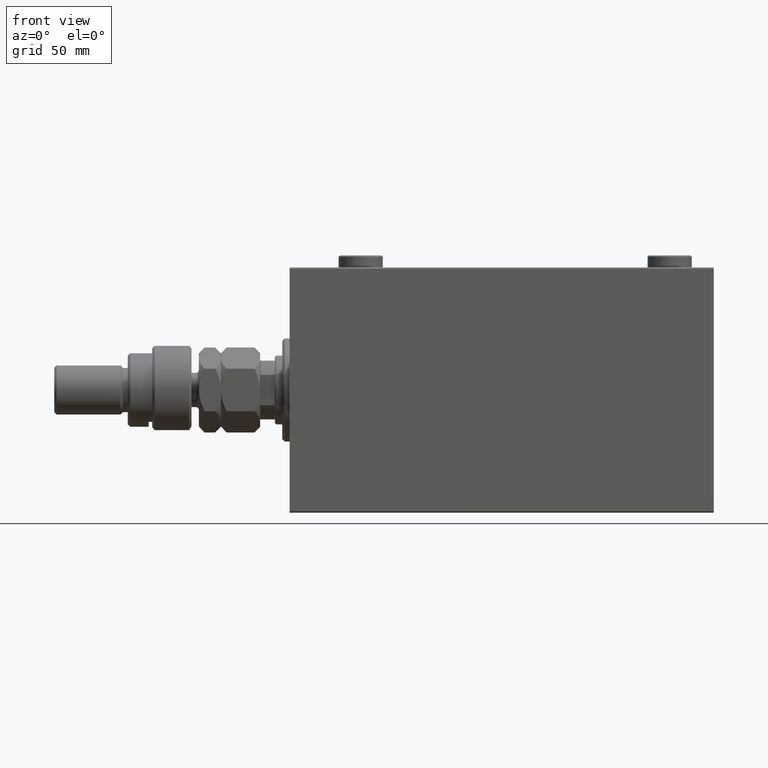
[diagram: clean part render]
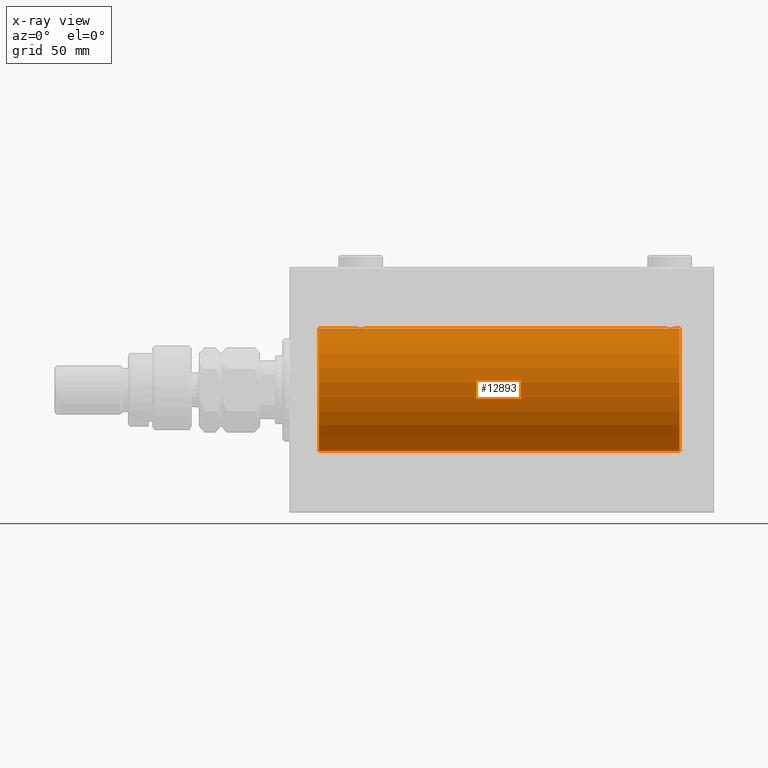
[diagram: x-ray — body ghosted, one internal face saturated and labeled with its STEP entity id]
A machine part, front view, then the same camera in x-ray: the body is ghosted and one INTERNAL B-rep face — a face not visible from any outside direction — is saturated and labeled: STEP entity #12893.
In plain terms, the highlighted cylindrical surface (partial cylindrical patch) has radius 25 mm, axis along (-1, -0, -0).
Its self-contained STEP definition (entity closure, byte-faithful):
#47 = CARTESIAN_POINT ( 'NONE',  ( 153.8896320349114433, -2.245863995402903157, 24.89899750494197761 ) ) ;
#211 = CARTESIAN_POINT ( 'NONE',  ( 153.4774322565980924, -1.989585286700263689, -24.92087098724766037 ) ) ;
#462 = CARTESIAN_POINT ( 'NONE',  ( 152.5665064476025918, -0.6588655613945982870, -24.99312727339971119 ) ) ;
#815 = CARTESIAN_POINT ( 'NONE',  ( 31.24606379094067066, -1.109818057797415713, 24.97580694515542632 ) ) ;
#830 = AXIS2_PLACEMENT_3D ( 'NONE', #2055, #24644, #47203 ) ;
#1209 = EDGE_CURVE ( 'NONE', #16530, #36736, #40498, .T. ) ;
#1306 = CARTESIAN_POINT ( 'NONE',  ( 28.67403429960540251, -2.484007091859760763, -24.87630842367763151 ) ) ;
#1545 = CARTESIAN_POINT ( 'NONE',  ( 26.83172358506043764, -1.255214705003182774, -24.96884293994578385 ) ) ;
#1779 = CARTESIAN_POINT ( 'NONE',  ( 30.98538033717095175, -1.528152964861311913, 24.95362559291379156 ) ) ;
#2017 = CARTESIAN_POINT ( 'NONE',  ( 26.50000000000000000, -0.3305063766663776104, -25.00000000000000000 ) ) ;
#2045 = ORIENTED_EDGE ( 'NONE', *, *, #31508, .T. ) ;
#2055 = CARTESIAN_POINT ( 'NONE',  ( 159.0000000000000000, 0.000000000000000000, 0.000000000000000000 ) ) ;
#2305 = CIRCLE ( 'NONE', #31345, 25.00000000000000000 ) ;
#2786 = EDGE_CURVE ( 'NONE', #36736, #15660, #19069, .T. ) ;
#3046 = VECTOR ( 'NONE', #18551, 1000.000000000000000 ) ;
#3183 = VERTEX_POINT ( 'NONE', #36355 ) ;
#3407 = CARTESIAN_POINT ( 'NONE',  ( 155.8078834240581045, -2.371528299825748309, -24.88734287464370709 ) ) ;
#3647 = CARTESIAN_POINT ( 'NONE',  ( 152.5000000000000284, -1.859904925762520849E-14, -25.00000000000000000 ) ) ;
#3736 = CARTESIAN_POINT ( 'NONE',  ( 153.4746381775692043, -1.987446652080261167, 24.92104239223419881 ) ) ;
#3758 = CARTESIAN_POINT ( 'NONE',  ( 26.50000000000000355, -1.940558383798427991E-23, 25.00000000000000000 ) ) ;
#3987 = CARTESIAN_POINT ( 'NONE',  ( 152.6278403059139919, -0.8058335233485478533, 24.98746277938383287 ) ) ;
#4501 = CARTESIAN_POINT ( 'NONE',  ( 30.10723845838410639, -2.247417070759899715, 24.89885693081946272 ) ) ;
#4722 = CARTESIAN_POINT ( 'NONE',  ( 157.2460637909407239, -1.109818057797416602, 24.97580694515542987 ) ) ;
#4744 = CARTESIAN_POINT ( 'NONE',  ( 30.25084023924055643, -2.170728182476724388, 24.90574631553725027 ) ) ;
#4963 = CARTESIAN_POINT ( 'NONE',  ( 156.8818595414864205, -1.653834020452921383, 24.94550385189584318 ) ) ;
#5213 = DIRECTION ( 'NONE',  ( 0.000000000000000000, 0.000000000000000000, 1.000000000000000000 ) ) ;
#5223 = CARTESIAN_POINT ( 'NONE',  ( 31.50000000000000000, 4.363522812204021992E-16, 25.00000000000000000 ) ) ;
#5231 = CARTESIAN_POINT ( 'NONE',  ( 29.80788342405805480, -2.371528299825742092, -24.88734287464371420 ) ) ;
#5274 = LINE ( 'NONE', #19308, #27976 ) ;
#5704 = CARTESIAN_POINT ( 'NONE',  ( 31.50000000000000000, 3.061616978460191625E-15, -25.00000000000000000 ) ) ;
#5848 = B_SPLINE_CURVE_WITH_KNOTS ( 'NONE', 3,
 ( #28685, #44152, #25494, #9793, #40453, #18160, #33091, #6837, #44388, #14460, #10749, #25738, #7083, #3407, #7813, #23054, #38012, #15194, #26971, #30155, #15435, #45130, #44881, #211, #29657, #11489, #45368, #26231, #19384, #462, #26721, #3647 ),
 .UNSPECIFIED., .F., .F.,
 ( 4, 2, 2, 2, 2, 2, 2, 2, 2, 2, 2, 2, 2, 2, 2, 4 ),
 ( 0.007821024441662285942, 0.008309723826317895815, 0.008798423210973505687, 0.009287122595629113825, 0.009775821980284723697, 0.01026452136494033357, 0.01075322074959594344, 0.01124192013425155331, 0.01173061951890716145, 0.01221931890356277133, 0.01270801828821838120, 0.01319671767287399107, 0.01368541705752960094, 0.01417411644218520908, 0.01466281582684082069, 0.01564021459615200574 ),
 .UNSPECIFIED. ) ;
#6220 = EDGE_CURVE ( 'NONE', #9595, #47251, #10904, .T. ) ;
#6837 = CARTESIAN_POINT ( 'NONE',  ( 156.9874981583440103, -1.525407911884363088, -24.95379469572362297 ) ) ;
#7083 = CARTESIAN_POINT ( 'NONE',  ( 156.1103679650886988, -2.245863995402897384, -24.89899750494196340 ) ) ;
#7418 = CARTESIAN_POINT ( 'NONE',  ( 153.3461666385066167, -1.881857718844722305, 24.92933960374833546 ) ) ;
#7655 = CARTESIAN_POINT ( 'NONE',  ( 155.8043566091629941, -2.372734907014176553, 24.88722742718433167 ) ) ;
#7813 = CARTESIAN_POINT ( 'NONE',  ( 155.6490439016910727, -2.419770561643909801, -24.88263927071751525 ) ) ;
#7903 = CARTESIAN_POINT ( 'NONE',  ( 152.5000000000000568, -0.1631750940176196485, 25.00000000000000711 ) ) ;
#8242 = ORIENTED_EDGE ( 'NONE', *, *, #38873, .F. ) ;
#8402 = CARTESIAN_POINT ( 'NONE',  ( 12.00000000000001066, 0.000000000000000000, 0.000000000000000000 ) ) ;
#8413 = CARTESIAN_POINT ( 'NONE',  ( 28.35439333851368815, -2.420689345803757497, -24.88254961038873248 ) ) ;
#8499 = DIRECTION ( 'NONE',  ( -1.000000000000000000, -0.000000000000000000, -0.000000000000000000 ) ) ;
#8631 = CARTESIAN_POINT ( 'NONE',  ( 157.4334935523974934, -0.6588655613945852974, 24.99312727339970763 ) ) ;
#8654 = CARTESIAN_POINT ( 'NONE',  ( 30.52256774340190049, -1.989585286700249256, 24.92087098724766392 ) ) ;
#9371 = CARTESIAN_POINT ( 'NONE',  ( 26.56650644760251723, -0.6588655613945887390, -24.99312727339970408 ) ) ;
#9595 = VERTEX_POINT ( 'NONE', #38760 ) ;
#9793 = CARTESIAN_POINT ( 'NONE',  ( 157.4201490922093569, -0.6480119923854199548, -24.99212088949390775 ) ) ;
#10749 = CARTESIAN_POINT ( 'NONE',  ( 156.5253618224308809, -1.987446652080268716, -24.92104239223420947 ) ) ;
#10904 = LINE ( 'NONE', #44536, #3046 ) ;
#10922 = EDGE_CURVE ( 'NONE', #26493, #47251, #2305, .T. ) ;
#11088 = CARTESIAN_POINT ( 'NONE',  ( 152.5798509077907283, -0.6480119923854225084, 24.99212088949390775 ) ) ;
#11342 = CARTESIAN_POINT ( 'NONE',  ( 154.6705231988572962, -2.483544361357272745, 24.87635491893501083 ) ) ;
#11361 = CARTESIAN_POINT ( 'NONE',  ( 26.75239748980448695, -1.106703319666887397, 24.97594585958023572 ) ) ;
#11489 = CARTESIAN_POINT ( 'NONE',  ( 153.1181404585135795, -1.653834020452954245, -24.94550385189584318 ) ) ;
#11600 = CARTESIAN_POINT ( 'NONE',  ( 28.67052319885731393, -2.483544361357276742, 24.87635491893502504 ) ) ;
#11811 = ORIENTED_EDGE ( 'NONE', *, *, #26593, .T. ) ;
#11911 = VERTEX_POINT ( 'NONE', #21139 ) ;
#12893 = ADVANCED_FACE ( 'NONE', ( #17285 ), #21444, .F. ) ;
#13065 = CARTESIAN_POINT ( 'NONE',  ( 28.19564339083698457, -2.372734907014170780, -24.88722742718433878 ) ) ;
#14460 = CARTESIAN_POINT ( 'NONE',  ( 156.6538333614933833, -1.881857718844727190, -24.92933960374833191 ) ) ;
#14545 = CARTESIAN_POINT ( 'NONE',  ( 155.6456066614863119, -2.420689345803765935, 24.88254961038872892 ) ) ;
#14566 = CARTESIAN_POINT ( 'NONE',  ( 29.64560666148632961, -2.420689345803763715, 24.88254961038873248 ) ) ;
#14783 = CARTESIAN_POINT ( 'NONE',  ( 152.5000000000000284, -1.941505016884693205E-23, 25.00000000000000000 ) ) ;
#14967 = ORIENTED_EDGE ( 'NONE', *, *, #10922, .T. ) ;
#15053 = CARTESIAN_POINT ( 'NONE',  ( 26.57985090779071058, -0.6480119923854237296, 24.99212088949391131 ) ) ;
#15194 = CARTESIAN_POINT ( 'NONE',  ( 154.8367641036145415, -2.500125740978203392, -24.87467329022544860 ) ) ;
#15283 = CARTESIAN_POINT ( 'NONE',  ( 155.3259657003945904, -2.484007091859768313, 24.87630842367763151 ) ) ;
#15297 = DIRECTION ( 'NONE',  ( -1.000000000000000000, 0.000000000000000000, 0.000000000000000000 ) ) ;
#15305 = CARTESIAN_POINT ( 'NONE',  ( 27.01250184165602164, -1.525407911884369083, 24.95379469572362652 ) ) ;
#15435 = CARTESIAN_POINT ( 'NONE',  ( 154.1956433908370627, -2.372734907014182326, -24.88722742718433523 ) ) ;
#15520 = VECTOR ( 'NONE', #30572, 1000.000000000000000 ) ;
#15635 = CARTESIAN_POINT ( 'NONE',  ( 26.50000000000000355, -3.314091892289268660E-15, -25.00000000000000000 ) ) ;
#15660 = VERTEX_POINT ( 'NONE', #37469 ) ;
#15863 = VERTEX_POINT ( 'NONE', #18060 ) ;
#16042 = CARTESIAN_POINT ( 'NONE',  ( 31.43349355239748988, -0.6588655613945851863, 24.99312727339971119 ) ) ;
#16049 = CARTESIAN_POINT ( 'NONE',  ( 29.64904390169096615, -2.419770561643904472, -24.88263927071750814 ) ) ;
#16526 = CARTESIAN_POINT ( 'NONE',  ( 26.50000000000000355, -3.314091892289268660E-15, -25.00000000000000000 ) ) ;
#16530 = VERTEX_POINT ( 'NONE', #39940 ) ;
#16766 = CARTESIAN_POINT ( 'NONE',  ( 27.47743225659811017, -1.989585286700241928, -24.92087098724764971 ) ) ;
#17285 = FACE_OUTER_BOUND ( 'NONE', #24513, .T. ) ;
#18060 = CARTESIAN_POINT ( 'NONE',  ( 157.5000000000000284, 3.061616978453880738E-15, -25.00000000000000000 ) ) ;
#18160 = CARTESIAN_POINT ( 'NONE',  ( 157.2476025101955202, -1.106703319666883401, -24.97594585958023927 ) ) ;
#18244 = CARTESIAN_POINT ( 'NONE',  ( 152.8298870971907775, -1.252049606094332246, 24.96900299967627390 ) ) ;
#18551 = DIRECTION ( 'NONE',  ( -1.000000000000000000, -0.000000000000000000, -0.000000000000000000 ) ) ;
#18730 = CARTESIAN_POINT ( 'NONE',  ( 153.7461680457550415, -2.169003991399871545, 24.90589728951138682 ) ) ;
#18755 = CARTESIAN_POINT ( 'NONE',  ( 26.50000000000001066, -0.1631750940176213693, 25.00000000000000355 ) ) ;
#18940 = EDGE_CURVE ( 'NONE', #16530, #15863, #34997, .T. ) ;
#19000 = CARTESIAN_POINT ( 'NONE',  ( 27.88963203491136156, -2.245863995402907154, 24.89899750494197050 ) ) ;
#19051 = B_SPLINE_CURVE_WITH_KNOTS ( 'NONE', 3,
 ( #3758, #18755, #33687, #15053, #30014, #11361, #21932, #15305, #33201, #26332, #22664, #37624, #19000, #30260, #45232, #11600, #26577, #41553, #48184, #14566, #29525, #4501, #4744, #8654, #42279, #20207, #1779, #38116, #815, #16042, #38842, #5223 ),
 .UNSPECIFIED., .F., .F.,
 ( 4, 2, 2, 2, 2, 2, 2, 2, 2, 2, 2, 2, 2, 2, 2, 4 ),
 ( 0.007821024441662279003, 0.008309723826317887141, 0.008798423210973493544, 0.009287122595629099947, 0.009775821980284708085, 0.01026452136494031622, 0.01075322074959592263, 0.01124192013425153076, 0.01173061951890713717, 0.01221931890356274530, 0.01270801828821835171, 0.01319671767287395811, 0.01368541705752956625, 0.01417411644218517265, 0.01466281582684077905, 0.01564021459615199186 ),
 .UNSPECIFIED. ) ;
#19069 = LINE ( 'NONE', #33760, #15520 ) ;
#19308 = CARTESIAN_POINT ( 'NONE',  ( 159.0000000000000000, 3.061616997868382254E-15, -25.00000000000000000 ) ) ;
#19384 = CARTESIAN_POINT ( 'NONE',  ( 152.7539362090593613, -1.109818057797427482, -24.97580694515542987 ) ) ;
#19744 = CARTESIAN_POINT ( 'NONE',  ( 31.48417840057656036, -0.3254210271412189548, -24.99840249400844883 ) ) ;
#19956 = CARTESIAN_POINT ( 'NONE',  ( 157.1682764149396405, -1.255214705003171449, 24.96884293994578741 ) ) ;
#19985 = CARTESIAN_POINT ( 'NONE',  ( 30.98749815834397836, -1.525407911884361978, -24.95379469572361586 ) ) ;
#20188 = CARTESIAN_POINT ( 'NONE',  ( 157.5000000000000284, 1.255219391854918090E-15, 25.00000000000000000 ) ) ;
#20207 = CARTESIAN_POINT ( 'NONE',  ( 30.88185954148646317, -1.653834020452941589, 24.94550385189584318 ) ) ;
#20215 = CARTESIAN_POINT ( 'NONE',  ( 27.11814045851354393, -1.653834020452935594, -24.94550385189585029 ) ) ;
#20321 = LINE ( 'NONE', #35028, #35074 ) ;
#20463 = CARTESIAN_POINT ( 'NONE',  ( 30.88412382786470900, -1.651251241585097285, -24.94567559498349141 ) ) ;
#20536 = CARTESIAN_POINT ( 'NONE',  ( 159.0000000000000000, 3.061616997868382254E-15, -25.00000000000000000 ) ) ;
#20702 = CARTESIAN_POINT ( 'NONE',  ( 29.16706495178061331, -2.499872792855077908, -24.87469871246083031 ) ) ;
#21139 = CARTESIAN_POINT ( 'NONE',  ( 31.50000000000000000, 4.363522812204021992E-16, 25.00000000000000000 ) ) ;
#21444 = CYLINDRICAL_SURFACE ( 'NONE', #830, 25.00000000000000000 ) ;
#21852 = ORIENTED_EDGE ( 'NONE', *, *, #27524, .T. ) ;
#21932 = CARTESIAN_POINT ( 'NONE',  ( 26.82988709719075970, -1.252049606094340239, 24.96900299967627390 ) ) ;
#22646 = CARTESIAN_POINT ( 'NONE',  ( 156.1072384583841313, -2.247417070759898383, 24.89885693081946982 ) ) ;
#22664 = CARTESIAN_POINT ( 'NONE',  ( 27.47463817756919013, -1.987446652080266496, 24.92104239223420592 ) ) ;
#23054 = CARTESIAN_POINT ( 'NONE',  ( 155.3294768011427323, -2.483544361357274077, -24.87635491893501083 ) ) ;
#23653 = CARTESIAN_POINT ( 'NONE',  ( 30.65383336149338334, -1.881857718844711869, -24.92933960374833902 ) ) ;
#24096 = ORIENTED_EDGE ( 'NONE', *, *, #1209, .F. ) ;
#24513 = EDGE_LOOP ( 'NONE', ( #24096, #25266, #2045, #32459, #21852, #31041, #14967, #39215, #11811, #8242, #42955, #32231 ) ) ;
#24644 = DIRECTION ( 'NONE',  ( -1.000000000000000000, -0.000000000000000000, -0.000000000000000000 ) ) ;
#24937 = EDGE_CURVE ( 'NONE', #27535, #48107, #5274, .T. ) ;
#25176 = EDGE_CURVE ( 'NONE', #28691, #26493, #20321, .T. ) ;
#25266 = ORIENTED_EDGE ( 'NONE', *, *, #18940, .T. ) ;
#25372 = B_SPLINE_CURVE_WITH_KNOTS ( 'NONE', 3,
 ( #14783, #7903, #44719, #11088, #3987, #44468, #18244, #33178, #41041, #7418, #3736, #18730, #47, #29991, #48161, #11342, #26313, #41280, #15283, #14545, #7655, #22646, #37598, #29502, #45703, #4963, #38096, #19956, #4722, #8631, #42258, #20188 ),
 .UNSPECIFIED., .F., .F.,
 ( 4, 2, 2, 2, 2, 2, 2, 2, 2, 2, 2, 2, 2, 2, 2, 4 ),
 ( 0.007821024441662285942, 0.008309723826317895815, 0.008798423210973505687, 0.009287122595629115560, 0.009775821980284725432, 0.01026452136494033357, 0.01075322074959594344, 0.01124192013425155331, 0.01173061951890716319, 0.01221931890356277306, 0.01270801828821838120, 0.01319671767287399280, 0.01368541705752960094, 0.01417411644218521255, 0.01466281582684082069, 0.01564021459615200921 ),
 .UNSPECIFIED. ) ;
#25494 = CARTESIAN_POINT ( 'NONE',  ( 157.4841784005765817, -0.3254210271412191213, -24.99840249400845238 ) ) ;
#25552 = CARTESIAN_POINT ( 'NONE',  ( 152.5000000000000284, -1.859904925762520849E-14, -25.00000000000000000 ) ) ;
#25738 = CARTESIAN_POINT ( 'NONE',  ( 156.2538319542450438, -2.169003991399876874, -24.90589728951139037 ) ) ;
#26231 = CARTESIAN_POINT ( 'NONE',  ( 152.8317235850605016, -1.255214705003197873, -24.96884293994578741 ) ) ;
#26313 = CARTESIAN_POINT ( 'NONE',  ( 154.8329350482193831, -2.499872792855083237, 24.87469871246082675 ) ) ;
#26332 = CARTESIAN_POINT ( 'NONE',  ( 27.34616663850662377, -1.881857718844722527, 24.92933960374834967 ) ) ;
#26493 = VERTEX_POINT ( 'NONE', #39605 ) ;
#26577 = CARTESIAN_POINT ( 'NONE',  ( 28.83293504821939379, -2.499872792855088122, 24.87469871246082320 ) ) ;
#26593 = EDGE_CURVE ( 'NONE', #9595, #11911, #19051, .T. ) ;
#26721 = CARTESIAN_POINT ( 'NONE',  ( 152.5000000000000284, -0.3305063766663936531, -25.00000000000000355 ) ) ;
#26971 = CARTESIAN_POINT ( 'NONE',  ( 154.6740342996054096, -2.484007091859774530, -24.87630842367762796 ) ) ;
#27171 = CARTESIAN_POINT ( 'NONE',  ( 159.0000000000000000, 0.000000000000000000, 25.00000000000000000 ) ) ;
#27223 = AXIS2_PLACEMENT_3D ( 'NONE', #45473, #15297, #5213 ) ;
#27320 = CARTESIAN_POINT ( 'NONE',  ( 31.50000000000000000, -0.1631750940176170672, -25.00000000000001421 ) ) ;
#27524 = EDGE_CURVE ( 'NONE', #48107, #28691, #44745, .T. ) ;
#27535 = VERTEX_POINT ( 'NONE', #25552 ) ;
#27808 = CARTESIAN_POINT ( 'NONE',  ( 31.37215969408607563, -0.8058335233485417470, -24.98746277938383287 ) ) ;
#27976 = VECTOR ( 'NONE', #31526, 1000.000000000000000 ) ;
#28099 = DIRECTION ( 'NONE',  ( -1.000000000000000000, -0.000000000000000000, -0.000000000000000000 ) ) ;
#28326 = VECTOR ( 'NONE', #8499, 1000.000000000000000 ) ;
#28685 = CARTESIAN_POINT ( 'NONE',  ( 157.5000000000000284, 3.061616978453880738E-15, -25.00000000000000000 ) ) ;
#28691 = VERTEX_POINT ( 'NONE', #15635 ) ;
#29467 = CARTESIAN_POINT ( 'NONE',  ( 12.00000000000001066, 0.000000000000000000, 25.00000000000000000 ) ) ;
#29502 = CARTESIAN_POINT ( 'NONE',  ( 156.5225677434018792, -1.989585286700258138, 24.92087098724766037 ) ) ;
#29525 = CARTESIAN_POINT ( 'NONE',  ( 29.80435660916302254, -2.372734907014178773, 24.88722742718433878 ) ) ;
#29616 = CARTESIAN_POINT ( 'NONE',  ( 31.50000000000000000, 3.061616978460191625E-15, -25.00000000000000000 ) ) ;
#29657 = CARTESIAN_POINT ( 'NONE',  ( 153.3487886644088860, -1.884161199660633113, -24.92916496727982434 ) ) ;
#29991 = CARTESIAN_POINT ( 'NONE',  ( 154.1921165759420376, -2.371528299825750530, 24.88734287464371420 ) ) ;
#30014 = CARTESIAN_POINT ( 'NONE',  ( 26.62784030591392437, -0.8058335233485492965, 24.98746277938383287 ) ) ;
#30155 = CARTESIAN_POINT ( 'NONE',  ( 154.3543933385137166, -2.420689345803772596, -24.88254961038873603 ) ) ;
#30260 = CARTESIAN_POINT ( 'NONE',  ( 28.19211657594194875, -2.371528299825755859, 24.88734287464371064 ) ) ;
#30572 = DIRECTION ( 'NONE',  ( -1.000000000000000000, -0.000000000000000000, -0.000000000000000000 ) ) ;
#31041 = ORIENTED_EDGE ( 'NONE', *, *, #25176, .T. ) ;
#31235 = CARTESIAN_POINT ( 'NONE',  ( 27.89276154161590426, -2.247417070759893498, -24.89885693081946982 ) ) ;
#31345 = AXIS2_PLACEMENT_3D ( 'NONE', #8402, #44983, #37858 ) ;
#31508 = EDGE_CURVE ( 'NONE', #15863, #27535, #5848, .T. ) ;
#31526 = DIRECTION ( 'NONE',  ( -1.000000000000000000, -0.000000000000000000, -0.000000000000000000 ) ) ;
#31716 = CARTESIAN_POINT ( 'NONE',  ( 26.75393620905933290, -1.109818057797415936, -24.97580694515541566 ) ) ;
#32231 = ORIENTED_EDGE ( 'NONE', *, *, #2786, .F. ) ;
#32459 = ORIENTED_EDGE ( 'NONE', *, *, #24937, .T. ) ;
#33091 = CARTESIAN_POINT ( 'NONE',  ( 157.1701129028093078, -1.252049606094332690, -24.96900299967627390 ) ) ;
#33178 = CARTESIAN_POINT ( 'NONE',  ( 153.0125018416560181, -1.525407911884361534, 24.95379469572361941 ) ) ;
#33201 = CARTESIAN_POINT ( 'NONE',  ( 27.11587617213529100, -1.651251241585107055, 24.94567559498348430 ) ) ;
#33687 = CARTESIAN_POINT ( 'NONE',  ( 26.51582159942343253, -0.3254210271412230626, 24.99840249400844527 ) ) ;
#33760 = CARTESIAN_POINT ( 'NONE',  ( 159.0000000000000000, 0.000000000000000000, 25.00000000000000000 ) ) ;
#34682 = CARTESIAN_POINT ( 'NONE',  ( 30.11036796508863844, -2.245863995402896496, -24.89899750494197761 ) ) ;
#34997 = LINE ( 'NONE', #20536, #41783 ) ;
#35028 = CARTESIAN_POINT ( 'NONE',  ( 159.0000000000000000, 3.061616997868382254E-15, -25.00000000000000000 ) ) ;
#35074 = VECTOR ( 'NONE', #46320, 1000.000000000000000 ) ;
#35249 = LINE ( 'NONE', #27171, #28326 ) ;
#35406 = CARTESIAN_POINT ( 'NONE',  ( 27.74915976075945778, -2.170728182476716839, -24.90574631553725382 ) ) ;
#35643 = CARTESIAN_POINT ( 'NONE',  ( 27.01461966282905536, -1.528152964861311469, -24.95362559291378446 ) ) ;
#36355 = CARTESIAN_POINT ( 'NONE',  ( 152.5000000000000284, -1.941505016884693205E-23, 25.00000000000000000 ) ) ;
#36736 = VERTEX_POINT ( 'NONE', #48259 ) ;
#37469 = CARTESIAN_POINT ( 'NONE',  ( 157.5000000000000284, 1.255219391854918090E-15, 25.00000000000000000 ) ) ;
#37598 = CARTESIAN_POINT ( 'NONE',  ( 156.2508402392405742, -2.170728182476731050, 24.90574631553725027 ) ) ;
#37624 = CARTESIAN_POINT ( 'NONE',  ( 27.74616804575497042, -2.169003991399875098, 24.90589728951138682 ) ) ;
#37858 = DIRECTION ( 'NONE',  ( 0.000000000000000000, 0.000000000000000000, 1.000000000000000000 ) ) ;
#38012 = CARTESIAN_POINT ( 'NONE',  ( 155.1670649517805884, -2.499872792855088566, -24.87469871246082675 ) ) ;
#38096 = CARTESIAN_POINT ( 'NONE',  ( 156.9853803371709660, -1.528152964861302587, 24.95362559291378801 ) ) ;
#38116 = CARTESIAN_POINT ( 'NONE',  ( 31.16827641493956591, -1.255214705003181885, 24.96884293994577675 ) ) ;
#38606 = CARTESIAN_POINT ( 'NONE',  ( 28.83676410361456632, -2.500125740978190958, -24.87467329022544504 ) ) ;
#38760 = CARTESIAN_POINT ( 'NONE',  ( 26.50000000000000355, -1.940558383798427991E-23, 25.00000000000000000 ) ) ;
#38842 = CARTESIAN_POINT ( 'NONE',  ( 31.50000000000000711, -0.3305063766663750568, 25.00000000000000355 ) ) ;
#38852 = CARTESIAN_POINT ( 'NONE',  ( 30.52536182243080987, -1.987446652080259391, -24.92104239223420947 ) ) ;
#38873 = EDGE_CURVE ( 'NONE', #3183, #11911, #35249, .T. ) ;
#39080 = CARTESIAN_POINT ( 'NONE',  ( 31.17011290280924385, -1.252049606094335354, -24.96900299967627390 ) ) ;
#39215 = ORIENTED_EDGE ( 'NONE', *, *, #6220, .F. ) ;
#39605 = CARTESIAN_POINT ( 'NONE',  ( 12.00000000000001066, 3.061616997868382254E-15, -25.00000000000000000 ) ) ;
#39940 = CARTESIAN_POINT ( 'NONE',  ( 159.0000000000000000, 3.061616997868382254E-15, -25.00000000000000000 ) ) ;
#40453 = CARTESIAN_POINT ( 'NONE',  ( 157.3721596940860650, -0.8058335233485454108, -24.98746277938383287 ) ) ;
#40498 = CIRCLE ( 'NONE', #27223, 25.00000000000000000 ) ;
#41041 = CARTESIAN_POINT ( 'NONE',  ( 153.1158761721353585, -1.651251241585108387, 24.94567559498349141 ) ) ;
#41280 = CARTESIAN_POINT ( 'NONE',  ( 155.1632358963854301, -2.500125740978198063, 24.87467329022544504 ) ) ;
#41553 = CARTESIAN_POINT ( 'NONE',  ( 29.16323589638543012, -2.500125740978199840, 24.87467329022545570 ) ) ;
#41783 = VECTOR ( 'NONE', #28099, 1000.000000000000000 ) ;
#42258 = CARTESIAN_POINT ( 'NONE',  ( 157.4999999999999432, -0.3305063766663741132, 24.99999999999999645 ) ) ;
#42279 = CARTESIAN_POINT ( 'NONE',  ( 30.65121133559112820, -1.884161199660620900, 24.92916496727982434 ) ) ;
#42286 = CARTESIAN_POINT ( 'NONE',  ( 29.32947680114268962, -2.483544361357266972, -24.87635491893501793 ) ) ;
#42530 = CARTESIAN_POINT ( 'NONE',  ( 31.42014909220929653, -0.6480119923854190667, -24.99212088949391131 ) ) ;
#42779 = CARTESIAN_POINT ( 'NONE',  ( 31.24760251019550594, -1.106703319666878516, -24.97594585958022861 ) ) ;
#42955 = ORIENTED_EDGE ( 'NONE', *, *, #43910, .T. ) ;
#43008 = CARTESIAN_POINT ( 'NONE',  ( 30.25383195424503668, -2.169003991399867104, -24.90589728951139392 ) ) ;
#43910 = EDGE_CURVE ( 'NONE', #3183, #15660, #25372, .T. ) ;
#44152 = CARTESIAN_POINT ( 'NONE',  ( 157.5000000000000000, -0.1631750940176165676, -25.00000000000000711 ) ) ;
#44388 = CARTESIAN_POINT ( 'NONE',  ( 156.8841238278647268, -1.651251241585112828, -24.94567559498349496 ) ) ;
#44468 = CARTESIAN_POINT ( 'NONE',  ( 152.7523974898045367, -1.106703319666886065, 24.97594585958023927 ) ) ;
#44536 = CARTESIAN_POINT ( 'NONE',  ( 159.0000000000000000, 0.000000000000000000, 25.00000000000000000 ) ) ;
#44719 = CARTESIAN_POINT ( 'NONE',  ( 152.5158215994234467, -0.3254210271412218414, 24.99840249400845238 ) ) ;
#44745 = B_SPLINE_CURVE_WITH_KNOTS ( 'NONE', 3,
 ( #5704, #27320, #19744, #42530, #27808, #42779, #39080, #19985, #20463, #23653, #38852, #43008, #34682, #5231, #16049, #42286, #20702, #38606, #1306, #8413, #13065, #31235, #35406, #16766, #46210, #20215, #35643, #1545, #31716, #9371, #2017, #16526 ),
 .UNSPECIFIED., .F., .F.,
 ( 4, 2, 2, 2, 2, 2, 2, 2, 2, 2, 2, 2, 2, 2, 2, 4 ),
 ( 0.007821024441662301555, 0.008309723826317909692, 0.008798423210973519565, 0.009287122595629124233, 0.009775821980284728902, 0.01026452136494033357, 0.01075322074959593997, 0.01124192013425154638, 0.01173061951890715104, 0.01221931890356275571, 0.01270801828821836038, 0.01319671767287396852, 0.01368541705752957319, 0.01417411644218517786, 0.01466281582684078252, 0.01564021459615199880 ),
 .UNSPECIFIED. ) ;
#44881 = CARTESIAN_POINT ( 'NONE',  ( 153.7491597607594827, -2.170728182476735491, -24.90574631553725027 ) ) ;
#44983 = DIRECTION ( 'NONE',  ( -1.000000000000000000, 0.000000000000000000, 0.000000000000000000 ) ) ;
#45130 = CARTESIAN_POINT ( 'NONE',  ( 153.8927615416158687, -2.247417070759904156, -24.89885693081946627 ) ) ;
#45232 = CARTESIAN_POINT ( 'NONE',  ( 28.35095609830903740, -2.419770561643915130, 24.88263927071751169 ) ) ;
#45368 = CARTESIAN_POINT ( 'NONE',  ( 153.0146196628290625, -1.528152964861327678, -24.95362559291378801 ) ) ;
#45473 = CARTESIAN_POINT ( 'NONE',  ( 159.0000000000000000, 0.000000000000000000, 0.000000000000000000 ) ) ;
#45703 = CARTESIAN_POINT ( 'NONE',  ( 156.6512113355911424, -1.884161199660603137, 24.92916496727982079 ) ) ;
#46210 = CARTESIAN_POINT ( 'NONE',  ( 27.34878866440888245, -1.884161199660613795, -24.92916496727982079 ) ) ;
#46320 = DIRECTION ( 'NONE',  ( -1.000000000000000000, -0.000000000000000000, -0.000000000000000000 ) ) ;
#47203 = DIRECTION ( 'NONE',  ( 0.000000000000000000, 0.000000000000000000, 1.000000000000000000 ) ) ;
#47251 = VERTEX_POINT ( 'NONE', #29467 ) ;
#48107 = VERTEX_POINT ( 'NONE', #29616 ) ;
#48161 = CARTESIAN_POINT ( 'NONE',  ( 154.3509560983090978, -2.419770561643911133, 24.88263927071751169 ) ) ;
#48184 = CARTESIAN_POINT ( 'NONE',  ( 29.32596570039460104, -2.484007091859769645, 24.87630842367763506 ) ) ;
#48259 = CARTESIAN_POINT ( 'NONE',  ( 159.0000000000000000, 0.000000000000000000, 25.00000000000000000 ) ) ;